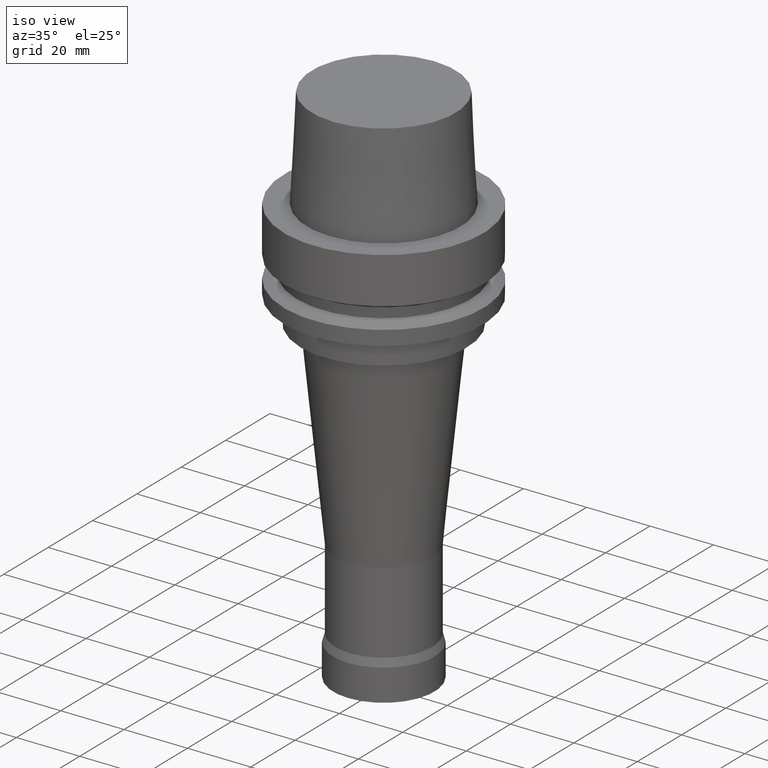
[diagram: clean part render]
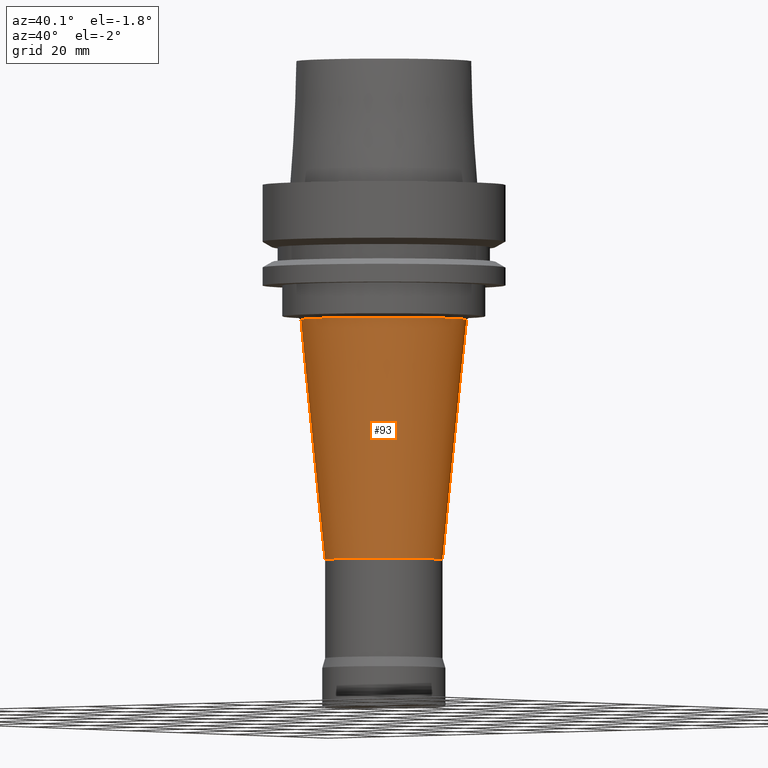
[diagram: tour spotlight — one face highlighted and labeled with its STEP entity id]
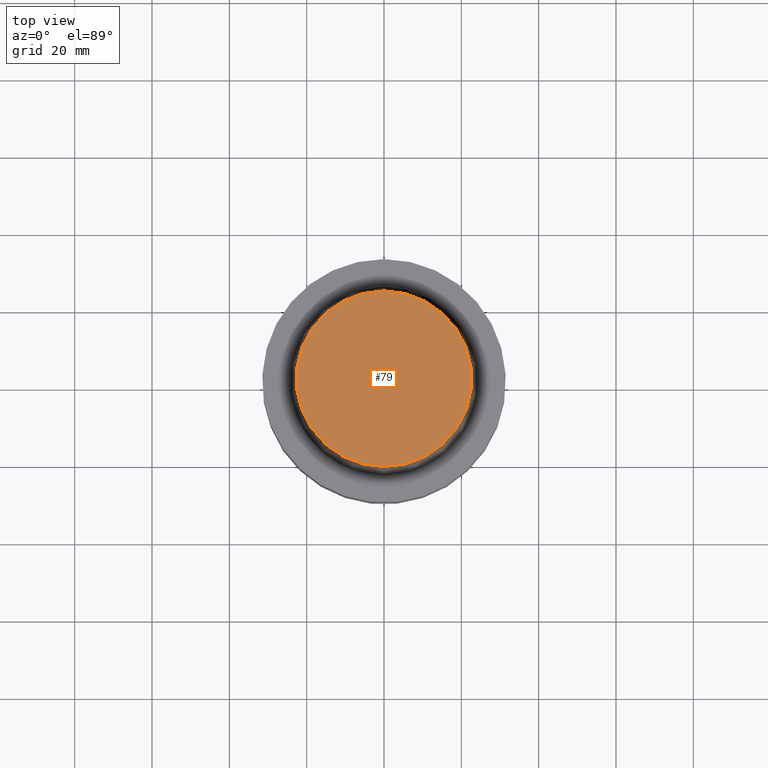
[diagram: tour spotlight — one face highlighted and labeled with its STEP entity id]
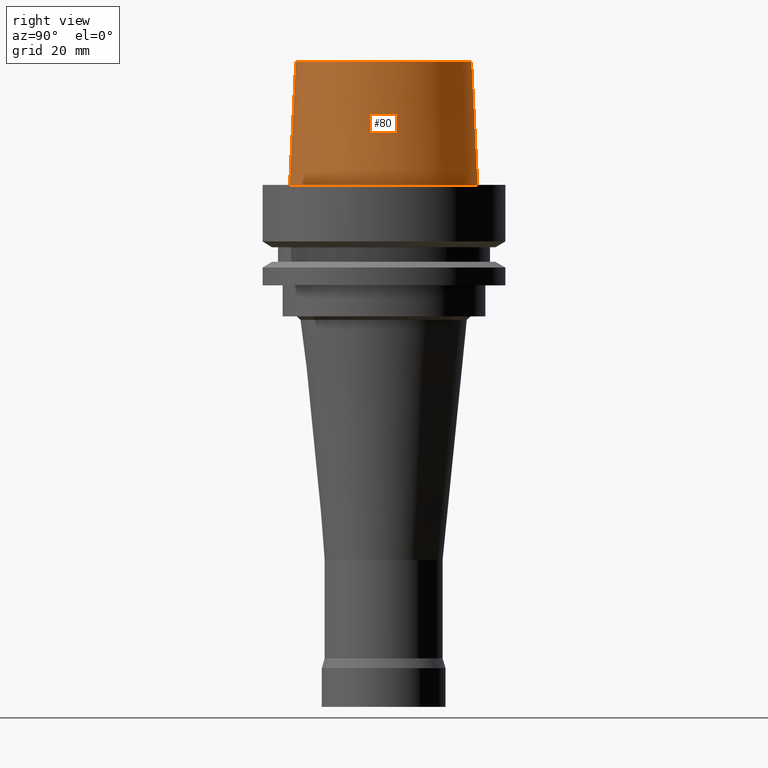
[diagram: tour spotlight — one face highlighted and labeled with its STEP entity id]
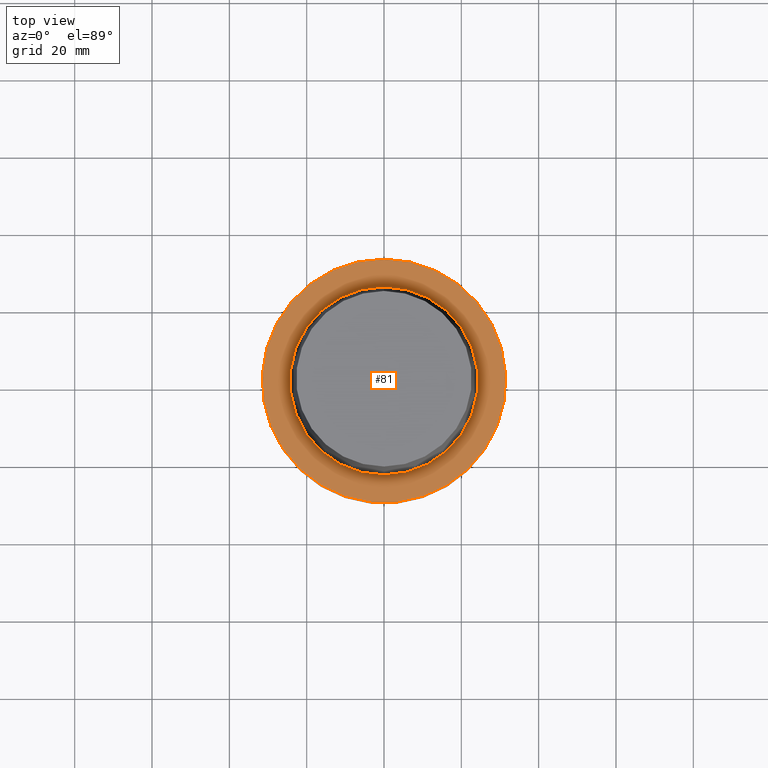
[diagram: tour spotlight — one face highlighted and labeled with its STEP entity id]
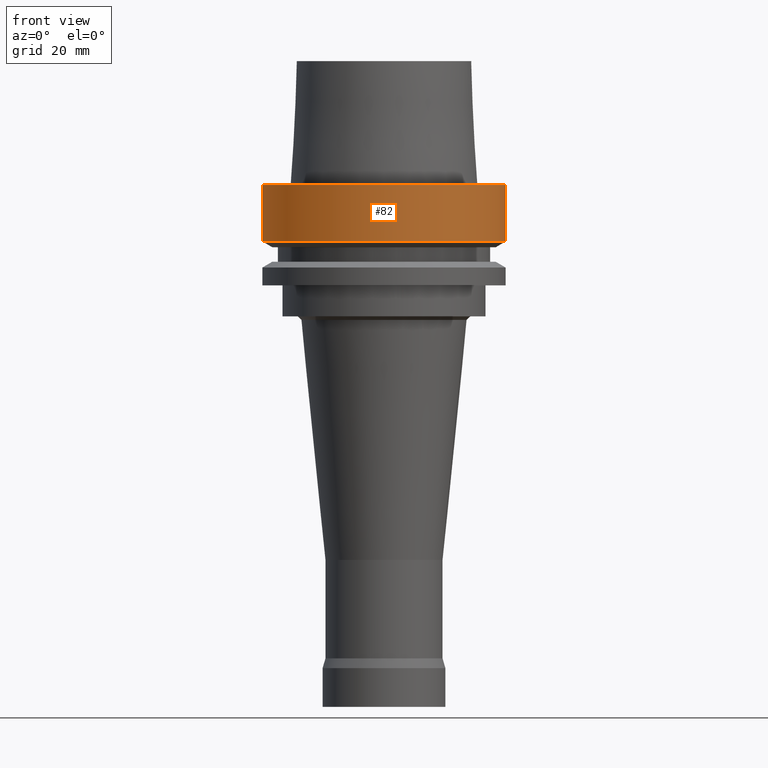
[diagram: tour spotlight — one face highlighted and labeled with its STEP entity id]
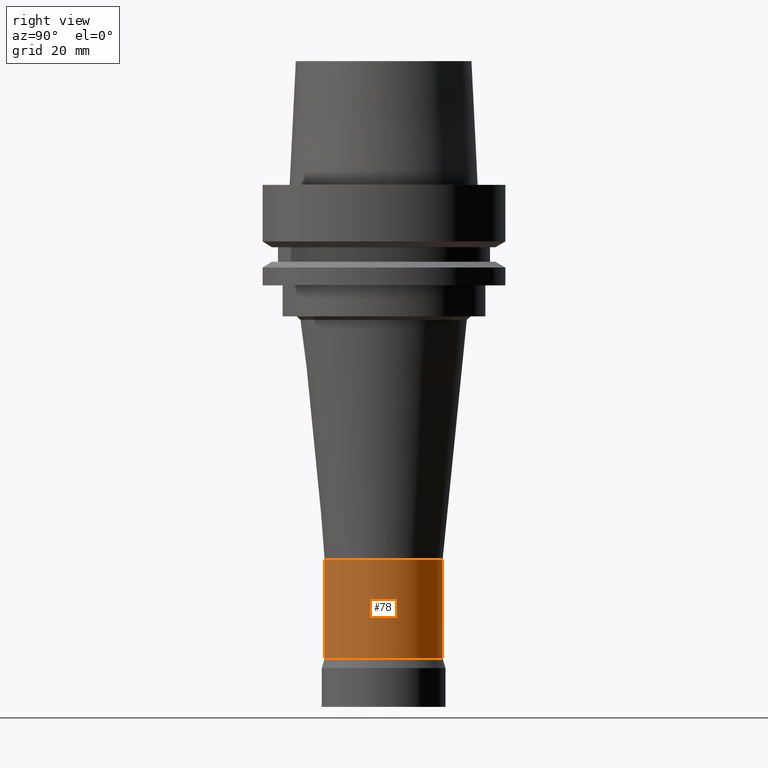
[diagram: tour spotlight — one face highlighted and labeled with its STEP entity id]
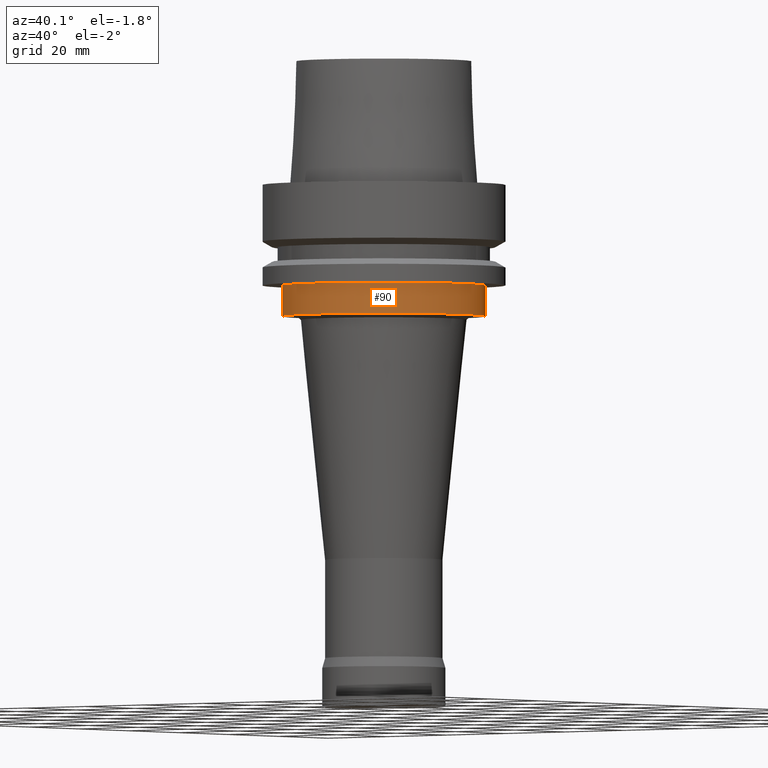
[diagram: tour spotlight — one face highlighted and labeled with its STEP entity id]
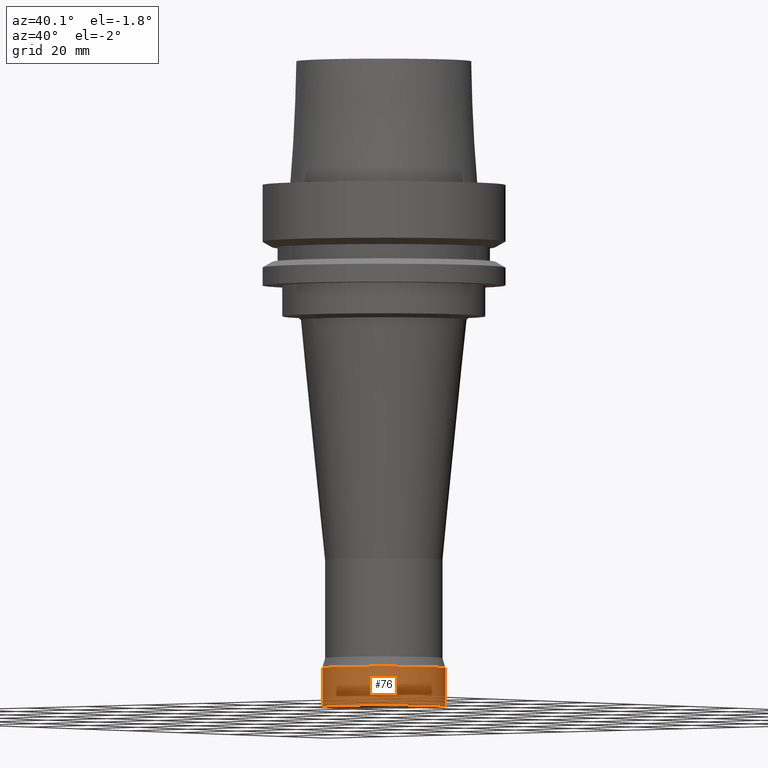
[diagram: tour spotlight — one face highlighted and labeled with its STEP entity id]
A machine part: a face-by-face anatomy tour. The part has 19 B-rep faces; the first image is the clean iso view, then the 8 largest visible faces are spotlighted one at a time (largest first), each with its STEP entity span.

Face 1 — auxiliary view, entity #93. In plain terms, the highlighted conical surface has half-angle 5.752 deg.
Definition (entity closure, byte-faithful):
#93=ADVANCED_FACE('',(#147,#148),#149,.T.);
#147=FACE_BOUND('',#202,.T.);
#148=FACE_BOUND('',#203,.T.);
#149=CONICAL_SURFACE('',#204,18.3775172406363,0.100386263986324);
#202=EDGE_LOOP('',(#293));
#203=EDGE_LOOP('',(#294));
#204=AXIS2_PLACEMENT_3D('',#295,#296,#297);
#293=ORIENTED_EDGE('',*,*,#301,.F.);
#294=ORIENTED_EDGE('',*,*,#315,.T.);
#295=CARTESIAN_POINT('',(4.03826615334748E-015,8.07653230669495E-015,-65.9498911222252));
#296=DIRECTION('',(-6.12323399573677E-017,-1.22464679914735E-016,1.0));
#297=DIRECTION('',(-1.23259516440783E-032,1.0,1.22464679914735E-016));
#301=EDGE_CURVE('',#322,#322,#323,.T.);
#315=EDGE_CURVE('',#350,#350,#351,.T.);
#322=VERTEX_POINT('',#358);
#323=CIRCLE('',#359,15.25);
#350=VERTEX_POINT('',#386);
#351=CIRCLE('',#387,21.5050344812726);
#358=CARTESIAN_POINT('',(5.93953697568619E-015,15.25,-96.9999999970853));
#359=AXIS2_PLACEMENT_3D('',#397,#398,#399);
#386=CARTESIAN_POINT('',(2.13699533100876E-015,21.5050344812727,-34.8997822473651));
#387=AXIS2_PLACEMENT_3D('',#439,#440,#441);
#397=CARTESIAN_POINT('',(5.93953697568619E-015,1.18790739513724E-014,-96.9999999970853));
#398=DIRECTION('',(6.12323399573677E-017,1.22464679914735E-016,-1.0));
#399=DIRECTION('',(-1.23259516440783E-032,1.0,1.22464679914735E-016));
#439=CARTESIAN_POINT('',(2.13699533100876E-015,4.27399066201753E-015,-34.8997822473651));
#440=DIRECTION('',(6.12323399573677E-017,1.22464679914735E-016,-1.0));
#441=DIRECTION('',(-1.23259516440783E-032,1.0,1.22464679914735E-016));

Face 2 — top view, entity #79. In plain terms, the highlighted planar face has unit normal (-0, -0, 1).
Definition (entity closure, byte-faithful):
#79=ADVANCED_FACE('',(#106),#107,.T.);
#106=FACE_OUTER_BOUND('',#161,.T.);
#107=PLANE('',#162);
#161=EDGE_LOOP('',(#224));
#162=AXIS2_PLACEMENT_3D('',#225,#226,#227);
#224=ORIENTED_EDGE('',*,*,#302,.F.);
#225=CARTESIAN_POINT('',(-1.95943487863576E-015,11.3574999984407,32.0));
#226=DIRECTION('',(-6.12323399573677E-017,-7.48080119807009E-016,1.0));
#227=DIRECTION('',(5.06338489421401E-032,-1.0,-7.48080119807009E-016));
#302=EDGE_CURVE('',#324,#324,#325,.T.);
#324=VERTEX_POINT('',#360);
#325=CIRCLE('',#361,22.7149999968815);
#360=CARTESIAN_POINT('',(-1.95943487863577E-015,22.7149999968815,32.0));
#361=AXIS2_PLACEMENT_3D('',#400,#401,#402);
#400=CARTESIAN_POINT('',(-1.95943487863576E-015,-3.91886975727153E-015,32.0));
#401=DIRECTION('',(6.12323399573677E-017,1.22464679914735E-016,-1.0));
#402=DIRECTION('',(-1.23259516440783E-032,1.0,1.22464679914735E-016));

Face 3 — right view, entity #80. In plain terms, the highlighted conical surface has half-angle 2.862 deg.
Definition (entity closure, byte-faithful):
#80=ADVANCED_FACE('',(#108,#109),#110,.T.);
#108=FACE_BOUND('',#163,.T.);
#109=FACE_BOUND('',#164,.T.);
#110=CONICAL_SURFACE('',#165,23.5149999985447,0.0499583958256321);
#163=EDGE_LOOP('',(#228));
#164=EDGE_LOOP('',(#229));
#165=AXIS2_PLACEMENT_3D('',#230,#231,#232);
#228=ORIENTED_EDGE('',*,*,#303,.F.);
#229=ORIENTED_EDGE('',*,*,#302,.T.);
#230=CARTESIAN_POINT('',(-9.79717439317883E-016,-1.95943487863576E-015,16.0));
#231=DIRECTION('',(6.12323399573676E-017,1.22464679914735E-016,-1.0));
#232=DIRECTION('',(-1.23259516440783E-032,1.0,1.22464679914735E-016));
#302=EDGE_CURVE('',#324,#324,#325,.T.);
#303=EDGE_CURVE('',#326,#326,#327,.T.);
#324=VERTEX_POINT('',#360);
#325=CIRCLE('',#361,22.7149999968815);
#326=VERTEX_POINT('',#362);
#327=CIRCLE('',#363,24.3150000002079);
#360=CARTESIAN_POINT('',(-1.95943487863577E-015,22.7149999968815,32.0));
#361=AXIS2_PLACEMENT_3D('',#400,#401,#402);
#362=CARTESIAN_POINT('',(-2.99705514228327E-031,24.3150000002079,2.97772869215225E-015));
#363=AXIS2_PLACEMENT_3D('',#403,#404,#405);
#400=CARTESIAN_POINT('',(-1.95943487863576E-015,-3.91886975727153E-015,32.0));
#401=DIRECTION('',(6.12323399573677E-017,1.22464679914735E-016,-1.0));
#402=DIRECTION('',(-1.23259516440783E-032,1.0,1.22464679914735E-016));
#403=CARTESIAN_POINT('',(0.0,0.0,0.0));
#404=DIRECTION('',(6.12323399573677E-017,1.22464679914735E-016,-1.0));
#405=DIRECTION('',(-1.23259516440783E-032,1.0,1.22464679914735E-016));

Face 4 — top view, entity #81. In plain terms, the highlighted planar face has unit normal (-0, -0, 1).
Definition (entity closure, byte-faithful):
#81=ADVANCED_FACE('',(#111,#112),#113,.T.);
#111=FACE_OUTER_BOUND('',#166,.T.);
#112=FACE_BOUND('',#167,.T.);
#113=PLANE('',#168);
#166=EDGE_LOOP('',(#233));
#167=EDGE_LOOP('',(#234));
#168=AXIS2_PLACEMENT_3D('',#235,#236,#237);
#233=ORIENTED_EDGE('',*,*,#304,.F.);
#234=ORIENTED_EDGE('',*,*,#303,.T.);
#235=CARTESIAN_POINT('',(-3.43986495508397E-031,27.907500000104,3.41768305473321E-015));
#236=DIRECTION('',(-6.12323399573677E-017,-1.22464679914735E-016,1.0));
#237=DIRECTION('',(1.23259516440783E-032,-1.0,-1.22464679914735E-016));
#303=EDGE_CURVE('',#326,#326,#327,.T.);
#304=EDGE_CURVE('',#328,#328,#329,.T.);
#326=VERTEX_POINT('',#362);
#327=CIRCLE('',#363,24.3150000002079);
#328=VERTEX_POINT('',#364);
#329=CIRCLE('',#365,31.5);
#362=CARTESIAN_POINT('',(-2.99705514228327E-031,24.3150000002079,2.97772869215225E-015));
#363=AXIS2_PLACEMENT_3D('',#403,#404,#405);
#364=CARTESIAN_POINT('',(-3.88267476788467E-031,31.5,3.85763741731416E-015));
#365=AXIS2_PLACEMENT_3D('',#406,#407,#408);
#403=CARTESIAN_POINT('',(0.0,0.0,0.0));
#404=DIRECTION('',(6.12323399573677E-017,1.22464679914735E-016,-1.0));
#405=DIRECTION('',(-1.23259516440783E-032,1.0,1.22464679914735E-016));
#406=CARTESIAN_POINT('',(0.0,0.0,0.0));
#407=DIRECTION('',(6.12323399573677E-017,1.22464679914735E-016,-1.0));
#408=DIRECTION('',(-1.23259516440783E-032,1.0,1.22464679914735E-016));

Face 5 — front view, entity #82. In plain terms, the highlighted cylindrical surface (bore or boss wall) has radius 31.5 mm, axis along (-0, -0, 1).
Definition (entity closure, byte-faithful):
#82=ADVANCED_FACE('',(#114,#115),#116,.T.);
#114=FACE_BOUND('',#169,.T.);
#115=FACE_BOUND('',#170,.T.);
#116=CYLINDRICAL_SURFACE('',#171,31.5);
#169=EDGE_LOOP('',(#238));
#170=EDGE_LOOP('',(#239));
#171=AXIS2_PLACEMENT_3D('',#240,#241,#242);
#238=ORIENTED_EDGE('',*,*,#305,.F.);
#239=ORIENTED_EDGE('',*,*,#304,.T.);
#240=CARTESIAN_POINT('',(4.47684973986342E-016,8.95369947972685E-016,-7.311250465));
#241=DIRECTION('',(-6.12323399573677E-017,-1.22464679914735E-016,1.0));
#242=DIRECTION('',(-1.23259516440783E-032,1.0,1.22464679914735E-016));
#304=EDGE_CURVE('',#328,#328,#329,.T.);
#305=EDGE_CURVE('',#330,#330,#331,.T.);
#328=VERTEX_POINT('',#364);
#329=CIRCLE('',#365,31.5);
#330=VERTEX_POINT('',#366);
#331=CIRCLE('',#367,31.5);
#364=CARTESIAN_POINT('',(-3.88267476788467E-031,31.5,3.85763741731416E-015));
#365=AXIS2_PLACEMENT_3D('',#406,#407,#408);
#366=CARTESIAN_POINT('',(8.95369947972684E-016,31.5,-14.62250093));
#367=AXIS2_PLACEMENT_3D('',#409,#410,#411);
#406=CARTESIAN_POINT('',(0.0,0.0,0.0));
#407=DIRECTION('',(6.12323399573677E-017,1.22464679914735E-016,-1.0));
#408=DIRECTION('',(-1.23259516440783E-032,1.0,1.22464679914735E-016));
#409=CARTESIAN_POINT('',(8.95369947972685E-016,1.79073989594537E-015,-14.62250093));
#410=DIRECTION('',(6.12323399573677E-017,1.22464679914735E-016,-1.0));
#411=DIRECTION('',(-1.23259516440783E-032,1.0,1.22464679914735E-016));

Face 6 — right view, entity #78. In plain terms, the highlighted cylindrical surface (bore or boss wall) has radius 15.25 mm, axis along (-0, -0, 1).
Definition (entity closure, byte-faithful):
#78=ADVANCED_FACE('',(#103,#104),#105,.T.);
#103=FACE_BOUND('',#158,.T.);
#104=FACE_BOUND('',#159,.T.);
#105=CYLINDRICAL_SURFACE('',#160,15.25);
#158=EDGE_LOOP('',(#219));
#159=EDGE_LOOP('',(#220));
#160=AXIS2_PLACEMENT_3D('',#221,#222,#223);
#219=ORIENTED_EDGE('',*,*,#299,.F.);
#220=ORIENTED_EDGE('',*,*,#301,.T.);
#221=CARTESIAN_POINT('',(6.71923858718489E-015,1.34384771743698E-014,-109.733493638543));
#222=DIRECTION('',(-6.12323399573677E-017,-1.22464679914735E-016,1.0));
#223=DIRECTION('',(-1.23259516440783E-032,1.0,1.22464679914735E-016));
#299=EDGE_CURVE('',#318,#318,#319,.T.);
#301=EDGE_CURVE('',#322,#322,#323,.T.);
#318=VERTEX_POINT('',#354);
#319=CIRCLE('',#355,15.25);
#322=VERTEX_POINT('',#358);
#323=CIRCLE('',#359,15.25);
#354=CARTESIAN_POINT('',(7.49894019868358E-015,15.25,-122.46698728));
#355=AXIS2_PLACEMENT_3D('',#391,#392,#393);
#358=CARTESIAN_POINT('',(5.93953697568619E-015,15.25,-96.9999999970853));
#359=AXIS2_PLACEMENT_3D('',#397,#398,#399);
#391=CARTESIAN_POINT('',(7.49894019868358E-015,1.49978803973672E-014,-122.46698728));
#392=DIRECTION('',(6.12323399573677E-017,1.22464679914735E-016,-1.0));
#393=DIRECTION('',(-1.23259516440783E-032,1.0,1.22464679914735E-016));
#397=CARTESIAN_POINT('',(5.93953697568619E-015,1.18790739513724E-014,-96.9999999970853));
#398=DIRECTION('',(6.12323399573677E-017,1.22464679914735E-016,-1.0));
#399=DIRECTION('',(-1.23259516440783E-032,1.0,1.22464679914735E-016));

Face 7 — auxiliary view, entity #90. In plain terms, the highlighted cylindrical surface (bore or boss wall) has radius 26.3 mm, axis along (-0, -0, 1).
Definition (entity closure, byte-faithful):
#90=ADVANCED_FACE('',(#138,#139),#140,.T.);
#138=FACE_BOUND('',#193,.T.);
#139=FACE_BOUND('',#194,.T.);
#140=CYLINDRICAL_SURFACE('',#195,26.3);
#193=EDGE_LOOP('',(#278));
#194=EDGE_LOOP('',(#279));
#195=AXIS2_PLACEMENT_3D('',#280,#281,#282);
#278=ORIENTED_EDGE('',*,*,#313,.F.);
#279=ORIENTED_EDGE('',*,*,#312,.T.);
#280=CARTESIAN_POINT('',(1.83697019872103E-015,3.67394039744206E-015,-30.0));
#281=DIRECTION('',(-6.12323399573677E-017,-1.22464679914735E-016,1.0));
#282=DIRECTION('',(-1.23259516440783E-032,1.0,1.22464679914735E-016));
#312=EDGE_CURVE('',#344,#344,#345,.T.);
#313=EDGE_CURVE('',#346,#346,#347,.T.);
#344=VERTEX_POINT('',#380);
#345=CIRCLE('',#381,26.3);
#346=VERTEX_POINT('',#382);
#347=CIRCLE('',#383,26.3);
#380=CARTESIAN_POINT('',(1.59204083889156E-015,26.3,-26.0));
#381=AXIS2_PLACEMENT_3D('',#430,#431,#432);
#382=CARTESIAN_POINT('',(2.0818995585505E-015,26.3,-34.0));
#383=AXIS2_PLACEMENT_3D('',#433,#434,#435);
#430=CARTESIAN_POINT('',(1.59204083889156E-015,3.18408167778312E-015,-26.0));
#431=DIRECTION('',(6.12323399573677E-017,1.22464679914735E-016,-1.0));
#432=DIRECTION('',(-1.23259516440783E-032,1.0,1.22464679914735E-016));
#433=CARTESIAN_POINT('',(2.0818995585505E-015,4.163799117101E-015,-34.0));
#434=DIRECTION('',(6.12323399573677E-017,1.22464679914735E-016,-1.0));
#435=DIRECTION('',(-1.23259516440783E-032,1.0,1.22464679914735E-016));

Face 8 — auxiliary view, entity #76. In plain terms, the highlighted cylindrical surface (bore or boss wall) has radius 16 mm, axis along (-0, -0, 1).
Definition (entity closure, byte-faithful):
#76=ADVANCED_FACE('',(#98,#99),#100,.T.);
#98=FACE_BOUND('',#153,.T.);
#99=FACE_BOUND('',#154,.T.);
#100=CYLINDRICAL_SURFACE('',#155,16.0);
#153=EDGE_LOOP('',(#210));
#154=EDGE_LOOP('',(#211));
#155=AXIS2_PLACEMENT_3D('',#212,#213,#214);
#210=ORIENTED_EDGE('',*,*,#300,.F.);
#211=ORIENTED_EDGE('',*,*,#298,.T.);
#212=CARTESIAN_POINT('',(7.9602041944578E-015,1.59204083889156E-014,-130.0));
#213=DIRECTION('',(-6.12323399573677E-017,-1.22464679914735E-016,1.0));
#214=DIRECTION('',(-1.23259516440783E-032,1.0,1.22464679914735E-016));
#298=EDGE_CURVE('',#316,#316,#317,.T.);
#300=EDGE_CURVE('',#320,#320,#321,.T.);
#316=VERTEX_POINT('',#352);
#317=CIRCLE('',#353,16.0);
#320=VERTEX_POINT('',#356);
#321=CIRCLE('',#357,16.0);
#352=CARTESIAN_POINT('',(7.65404249467096E-015,16.0,-125.0));
#353=AXIS2_PLACEMENT_3D('',#388,#389,#390);
#356=CARTESIAN_POINT('',(8.26636589424463E-015,16.0,-135.0));
#357=AXIS2_PLACEMENT_3D('',#394,#395,#396);
#388=CARTESIAN_POINT('',(7.65404249467096E-015,1.53080849893419E-014,-125.0));
#389=DIRECTION('',(6.12323399573677E-017,1.22464679914735E-016,-1.0));
#390=DIRECTION('',(-1.23259516440783E-032,1.0,1.22464679914735E-016));
#394=CARTESIAN_POINT('',(8.26636589424463E-015,1.65327317884893E-014,-135.0));
#395=DIRECTION('',(6.12323399573677E-017,1.22464679914735E-016,-1.0));
#396=DIRECTION('',(-1.23259516440783E-032,1.0,1.22464679914735E-016));